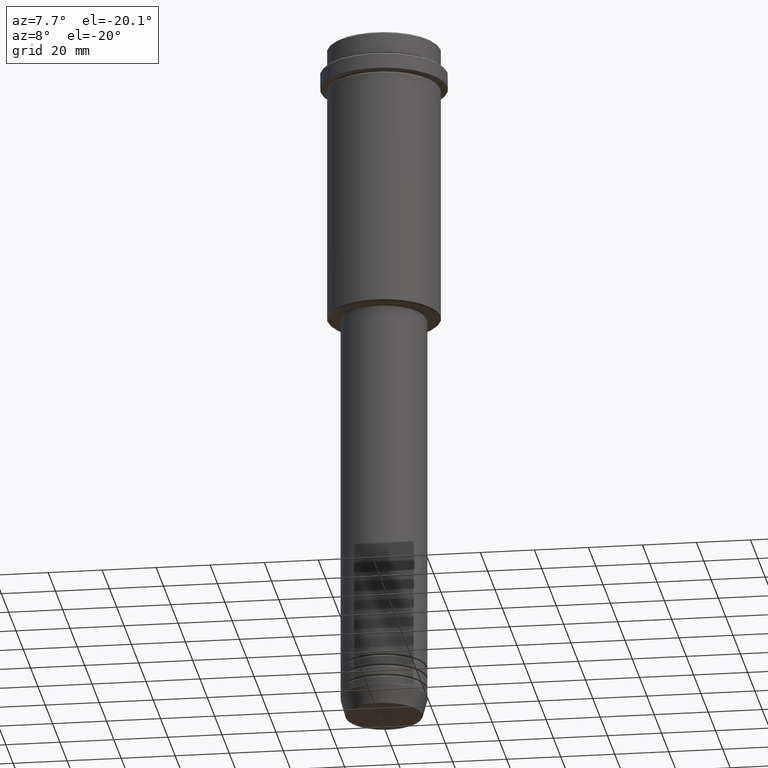
[diagram: clean part render]
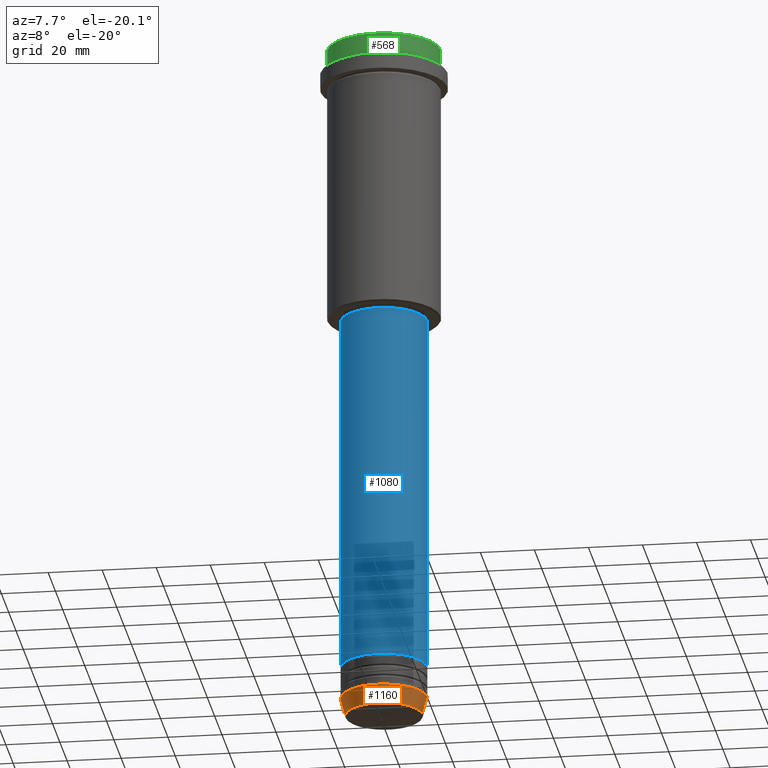
[diagram: same view with three faces highlighted in distinct colors, each labeled with its STEP entity id]
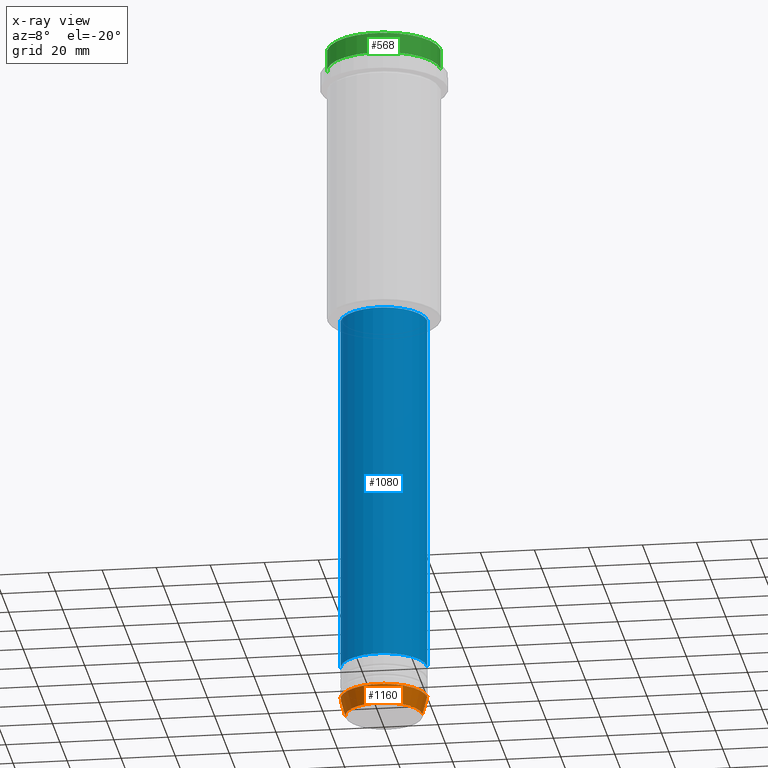
[diagram: x-ray of the same camera — body ghosted, the three highlighted faces saturated]
A machine part, auxiliary view with three faces highlighted in distinct colors.
The next image is the same camera in x-ray (body ghosted, the three faces saturated) — at least one of them is partly hidden behind the body in this view.
Their STEP definitions:

[orange] entity #1160 — the highlighted conical surface has half-angle 15 deg.
#12 = EDGE_CURVE ( 'NONE', #223, #636, #786, .T. ) ;
#132 = EDGE_CURVE ( 'NONE', #223, #198, #1413, .T. ) ;
#147 = DIRECTION ( 'NONE',  ( 0.2588190451025213501, 0.000000000000000000, 0.9659258262890680902 ) ) ;
#187 = EDGE_CURVE ( 'NONE', #198, #317, #411, .T. ) ;
#198 = VERTEX_POINT ( 'NONE', #1244 ) ;
#223 = VERTEX_POINT ( 'NONE', #1025 ) ;
#259 = DIRECTION ( 'NONE',  ( -0.000000000000000000, -0.000000000000000000, 1.000000000000000000 ) ) ;
#283 = CARTESIAN_POINT ( 'NONE',  ( 16.00000000000000000, 0.000000000000000000, -253.0000000000000000 ) ) ;
#317 = VERTEX_POINT ( 'NONE', #283 ) ;
#370 = CARTESIAN_POINT ( 'NONE',  ( 0.000000000000000000, 0.000000000000000000, -253.0000000000000000 ) ) ;
#387 = AXIS2_PLACEMENT_3D ( 'NONE', #370, #259, #698 ) ;
#411 = CIRCLE ( 'NONE', #387, 16.00000000000000000 ) ;
#415 = CONICAL_SURFACE ( 'NONE', #924, 16.00000000000000000, 0.2617993877991500740 ) ;
#427 = EDGE_CURVE ( 'NONE', #636, #317, #1243, .T. ) ;
#507 = ORIENTED_EDGE ( 'NONE', *, *, #132, .F. ) ;
#540 = VECTOR ( 'NONE', #147, 1000.000000000000000 ) ;
#567 = CARTESIAN_POINT ( 'NONE',  ( -16.00000000000000000, 1.959434878635765131E-15, -253.0000000000000000 ) ) ;
#621 = ORIENTED_EDGE ( 'NONE', *, *, #187, .F. ) ;
#636 = VERTEX_POINT ( 'NONE', #760 ) ;
#651 = CARTESIAN_POINT ( 'NONE',  ( 0.000000000000000000, 0.000000000000000000, -259.6294095225512706 ) ) ;
#681 = CARTESIAN_POINT ( 'NONE',  ( 16.00000000000000000, 0.000000000000000000, -253.0000000000000000 ) ) ;
#693 = DIRECTION ( 'NONE',  ( -0.2588190451025213501, 3.169619151431772337E-17, 0.9659258262890680902 ) ) ;
#698 = DIRECTION ( 'NONE',  ( 1.000000000000000000, 0.000000000000000000, 0.000000000000000000 ) ) ;
#760 = CARTESIAN_POINT ( 'NONE',  ( 14.22365507213718772, 0.000000000000000000, -259.6294095225512706 ) ) ;
#786 = CIRCLE ( 'NONE', #1228, 14.22365507213718772 ) ;
#904 = FACE_OUTER_BOUND ( 'NONE', #1077, .T. ) ;
#924 = AXIS2_PLACEMENT_3D ( 'NONE', #1218, #1110, #1344 ) ;
#1025 = CARTESIAN_POINT ( 'NONE',  ( -14.22365507213718772, 1.850665122131323337E-15, -259.6294095225512706 ) ) ;
#1077 = EDGE_LOOP ( 'NONE', ( #507, #1174, #1261, #621 ) ) ;
#1109 = VECTOR ( 'NONE', #693, 1000.000000000000000 ) ;
#1110 = DIRECTION ( 'NONE',  ( -0.000000000000000000, -0.000000000000000000, 1.000000000000000000 ) ) ;
#1133 = DIRECTION ( 'NONE',  ( 1.000000000000000000, 0.000000000000000000, 0.000000000000000000 ) ) ;
#1160 = ADVANCED_FACE ( 'NONE', ( #904 ), #415, .T. ) ;
#1174 = ORIENTED_EDGE ( 'NONE', *, *, #12, .T. ) ;
#1218 = CARTESIAN_POINT ( 'NONE',  ( 0.000000000000000000, 0.000000000000000000, -253.0000000000000000 ) ) ;
#1228 = AXIS2_PLACEMENT_3D ( 'NONE', #651, #1330, #1133 ) ;
#1243 = LINE ( 'NONE', #681, #540 ) ;
#1244 = CARTESIAN_POINT ( 'NONE',  ( -16.00000000000000000, 1.959434878635765131E-15, -253.0000000000000000 ) ) ;
#1261 = ORIENTED_EDGE ( 'NONE', *, *, #427, .T. ) ;
#1330 = DIRECTION ( 'NONE',  ( -0.000000000000000000, -0.000000000000000000, 1.000000000000000000 ) ) ;
#1344 = DIRECTION ( 'NONE',  ( 1.000000000000000000, 0.000000000000000000, 0.000000000000000000 ) ) ;
#1413 = LINE ( 'NONE', #567, #1109 ) ;

[blue] entity #1080 — the highlighted cylindrical surface (partial cylindrical patch) has radius 16 mm, axis along (-0, -0, 1).
#18 = CARTESIAN_POINT ( 'NONE',  ( 16.00000000000000355, 0.000000000000000000, -106.0000000000000142 ) ) ;
#21 = DIRECTION ( 'NONE',  ( 1.000000000000000000, 0.000000000000000000, 0.000000000000000000 ) ) ;
#105 = CARTESIAN_POINT ( 'NONE',  ( 16.00000000000000000, 0.000000000000000000, 0.000000000000000000 ) ) ;
#111 = ORIENTED_EDGE ( 'NONE', *, *, #1044, .F. ) ;
#123 = CARTESIAN_POINT ( 'NONE',  ( -16.00000000000000000, 1.959434878635765131E-15, 0.000000000000000000 ) ) ;
#140 = VERTEX_POINT ( 'NONE', #823 ) ;
#150 = CARTESIAN_POINT ( 'NONE',  ( 0.000000000000000000, 0.000000000000000000, -106.0000000000000142 ) ) ;
#199 = EDGE_LOOP ( 'NONE', ( #1143, #503, #1082, #111 ) ) ;
#297 = CARTESIAN_POINT ( 'NONE',  ( -16.00000000000000355, 1.959434878635765526E-15, -106.0000000000000142 ) ) ;
#304 = VERTEX_POINT ( 'NONE', #297 ) ;
#349 = DIRECTION ( 'NONE',  ( 1.000000000000000000, 0.000000000000000000, 0.000000000000000000 ) ) ;
#363 = VERTEX_POINT ( 'NONE', #961 ) ;
#429 = CIRCLE ( 'NONE', #856, 16.00000000000000000 ) ;
#464 = DIRECTION ( 'NONE',  ( -0.000000000000000000, -0.000000000000000000, 1.000000000000000000 ) ) ;
#503 = ORIENTED_EDGE ( 'NONE', *, *, #616, .T. ) ;
#554 = DIRECTION ( 'NONE',  ( -0.000000000000000000, -0.000000000000000000, 1.000000000000000000 ) ) ;
#571 = AXIS2_PLACEMENT_3D ( 'NONE', #150, #464, #349 ) ;
#596 = VECTOR ( 'NONE', #628, 1000.000000000000000 ) ;
#616 = EDGE_CURVE ( 'NONE', #140, #363, #429, .T. ) ;
#628 = DIRECTION ( 'NONE',  ( -0.000000000000000000, -0.000000000000000000, 1.000000000000000000 ) ) ;
#665 = CARTESIAN_POINT ( 'NONE',  ( 0.000000000000000000, 0.000000000000000000, 0.000000000000000000 ) ) ;
#702 = FACE_OUTER_BOUND ( 'NONE', #199, .T. ) ;
#765 = EDGE_CURVE ( 'NONE', #140, #304, #1118, .T. ) ;
#767 = VERTEX_POINT ( 'NONE', #18 ) ;
#823 = CARTESIAN_POINT ( 'NONE',  ( -16.00000000000000000, 1.959434878635765131E-15, -240.9999999999998863 ) ) ;
#838 = EDGE_CURVE ( 'NONE', #363, #767, #957, .T. ) ;
#850 = CYLINDRICAL_SURFACE ( 'NONE', #949, 16.00000000000000000 ) ;
#856 = AXIS2_PLACEMENT_3D ( 'NONE', #981, #1123, #21 ) ;
#900 = VECTOR ( 'NONE', #554, 1000.000000000000000 ) ;
#949 = AXIS2_PLACEMENT_3D ( 'NONE', #665, #1415, #1321 ) ;
#957 = LINE ( 'NONE', #105, #596 ) ;
#961 = CARTESIAN_POINT ( 'NONE',  ( 16.00000000000000000, 0.000000000000000000, -240.9999999999998863 ) ) ;
#970 = CIRCLE ( 'NONE', #571, 16.00000000000000355 ) ;
#981 = CARTESIAN_POINT ( 'NONE',  ( 0.000000000000000000, 0.000000000000000000, -240.9999999999998863 ) ) ;
#1044 = EDGE_CURVE ( 'NONE', #304, #767, #970, .T. ) ;
#1080 = ADVANCED_FACE ( 'NONE', ( #702 ), #850, .T. ) ;
#1082 = ORIENTED_EDGE ( 'NONE', *, *, #838, .T. ) ;
#1118 = LINE ( 'NONE', #123, #900 ) ;
#1123 = DIRECTION ( 'NONE',  ( -0.000000000000000000, -0.000000000000000000, 1.000000000000000000 ) ) ;
#1143 = ORIENTED_EDGE ( 'NONE', *, *, #765, .F. ) ;
#1321 = DIRECTION ( 'NONE',  ( 1.000000000000000000, 0.000000000000000000, 0.000000000000000000 ) ) ;
#1415 = DIRECTION ( 'NONE',  ( -0.000000000000000000, -0.000000000000000000, 1.000000000000000000 ) ) ;

[green] entity #568 — the highlighted cylindrical surface (partial cylindrical patch) has radius 21 mm, axis along (-0, -0, 1).
#37 = DIRECTION ( 'NONE',  ( -0.000000000000000000, -0.000000000000000000, 1.000000000000000000 ) ) ;
#70 = EDGE_CURVE ( 'NONE', #1304, #1376, #639, .T. ) ;
#117 = VECTOR ( 'NONE', #37, 1000.000000000000000 ) ;
#186 = ORIENTED_EDGE ( 'NONE', *, *, #230, .T. ) ;
#210 = ORIENTED_EDGE ( 'NONE', *, *, #1380, .T. ) ;
#230 = EDGE_CURVE ( 'NONE', #550, #1304, #683, .T. ) ;
#258 = DIRECTION ( 'NONE',  ( 1.000000000000000000, 0.000000000000000000, 0.000000000000000000 ) ) ;
#269 = DIRECTION ( 'NONE',  ( -0.000000000000000000, -0.000000000000000000, 1.000000000000000000 ) ) ;
#378 = CARTESIAN_POINT ( 'NONE',  ( 21.00000000000000000, 0.000000000000000000, -0.4999999999999276135 ) ) ;
#384 = DIRECTION ( 'NONE',  ( 1.000000000000000000, 0.000000000000000000, 0.000000000000000000 ) ) ;
#392 = VECTOR ( 'NONE', #269, 1000.000000000000000 ) ;
#410 = CARTESIAN_POINT ( 'NONE',  ( -21.00000000000000000, 2.571758278209441661E-15, -0.4999999999999276135 ) ) ;
#465 = VERTEX_POINT ( 'NONE', #898 ) ;
#479 = CIRCLE ( 'NONE', #1325, 21.00000000000000000 ) ;
#517 = CARTESIAN_POINT ( 'NONE',  ( 0.000000000000000000, 0.000000000000000000, -7.999999999999998224 ) ) ;
#550 = VERTEX_POINT ( 'NONE', #950 ) ;
#566 = DIRECTION ( 'NONE',  ( -0.000000000000000000, -0.000000000000000000, 1.000000000000000000 ) ) ;
#568 = ADVANCED_FACE ( 'NONE', ( #1099 ), #928, .T. ) ;
#584 = CARTESIAN_POINT ( 'NONE',  ( 0.000000000000000000, 0.000000000000000000, -0.4999999999999276135 ) ) ;
#617 = AXIS2_PLACEMENT_3D ( 'NONE', #1255, #566, #258 ) ;
#639 = CIRCLE ( 'NONE', #1272, 21.00000000000000000 ) ;
#683 = LINE ( 'NONE', #1139, #117 ) ;
#742 = DIRECTION ( 'NONE',  ( 1.000000000000000000, 0.000000000000000000, 0.000000000000000000 ) ) ;
#748 = EDGE_LOOP ( 'NONE', ( #1260, #210, #186, #1026 ) ) ;
#870 = EDGE_CURVE ( 'NONE', #465, #1376, #1372, .T. ) ;
#898 = CARTESIAN_POINT ( 'NONE',  ( -21.00000000000000000, 2.571758278209441661E-15, -7.999999999999998224 ) ) ;
#928 = CYLINDRICAL_SURFACE ( 'NONE', #617, 21.00000000000000000 ) ;
#950 = CARTESIAN_POINT ( 'NONE',  ( 21.00000000000000000, 0.000000000000000000, -7.999999999999998224 ) ) ;
#960 = DIRECTION ( 'NONE',  ( -0.000000000000000000, -0.000000000000000000, 1.000000000000000000 ) ) ;
#1026 = ORIENTED_EDGE ( 'NONE', *, *, #70, .T. ) ;
#1031 = CARTESIAN_POINT ( 'NONE',  ( -21.00000000000000000, 2.571758278209441661E-15, 0.000000000000000000 ) ) ;
#1099 = FACE_OUTER_BOUND ( 'NONE', #748, .T. ) ;
#1139 = CARTESIAN_POINT ( 'NONE',  ( 21.00000000000000000, 0.000000000000000000, 0.000000000000000000 ) ) ;
#1167 = DIRECTION ( 'NONE',  ( 0.000000000000000000, 0.000000000000000000, -1.000000000000000000 ) ) ;
#1255 = CARTESIAN_POINT ( 'NONE',  ( 0.000000000000000000, 0.000000000000000000, 0.000000000000000000 ) ) ;
#1260 = ORIENTED_EDGE ( 'NONE', *, *, #870, .F. ) ;
#1272 = AXIS2_PLACEMENT_3D ( 'NONE', #584, #1167, #384 ) ;
#1304 = VERTEX_POINT ( 'NONE', #378 ) ;
#1325 = AXIS2_PLACEMENT_3D ( 'NONE', #517, #960, #742 ) ;
#1372 = LINE ( 'NONE', #1031, #392 ) ;
#1376 = VERTEX_POINT ( 'NONE', #410 ) ;
#1380 = EDGE_CURVE ( 'NONE', #465, #550, #479, .T. ) ;